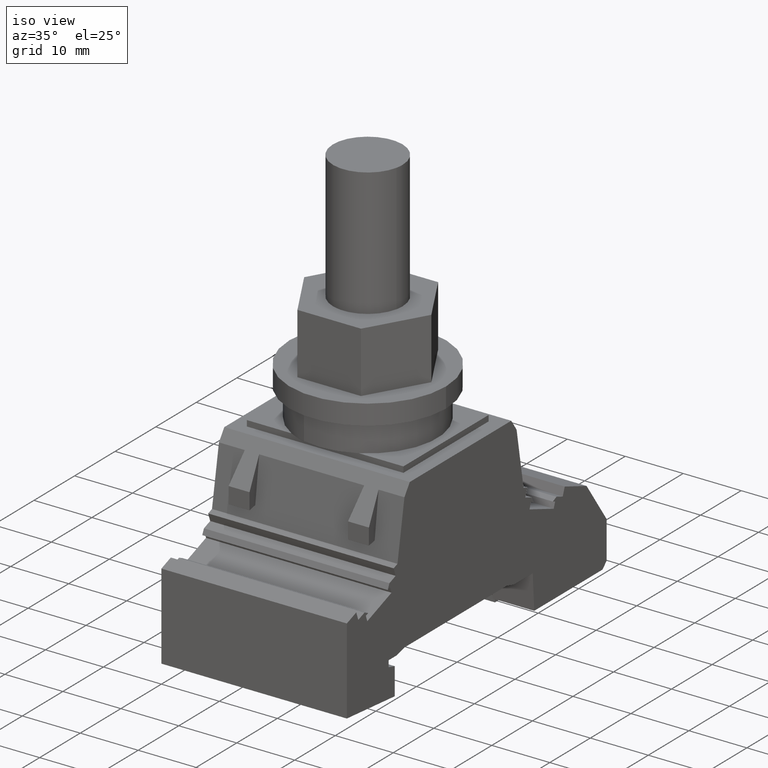
[diagram: clean part render]
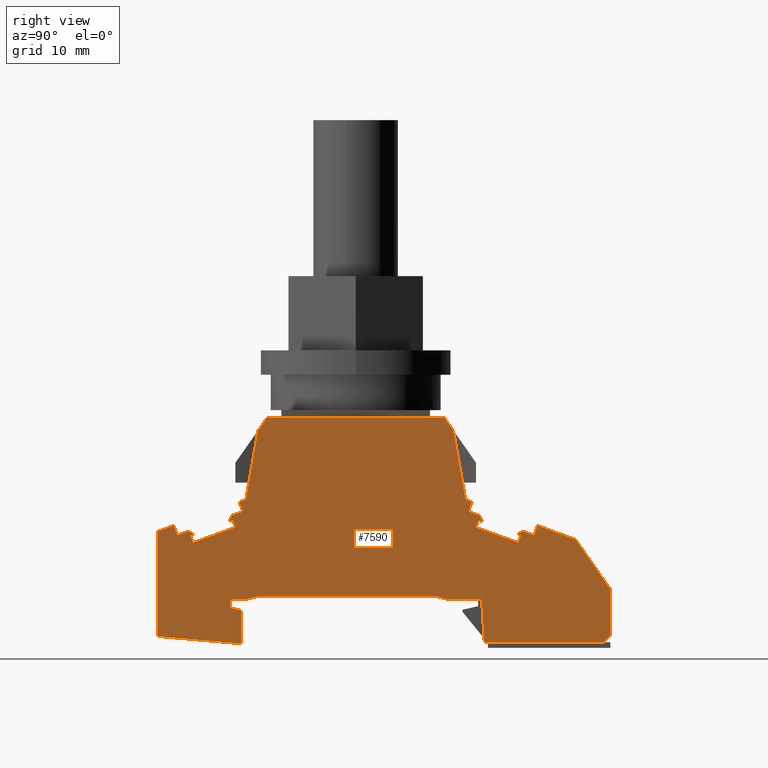
[diagram: tour spotlight — one face highlighted and labeled with its STEP entity id]
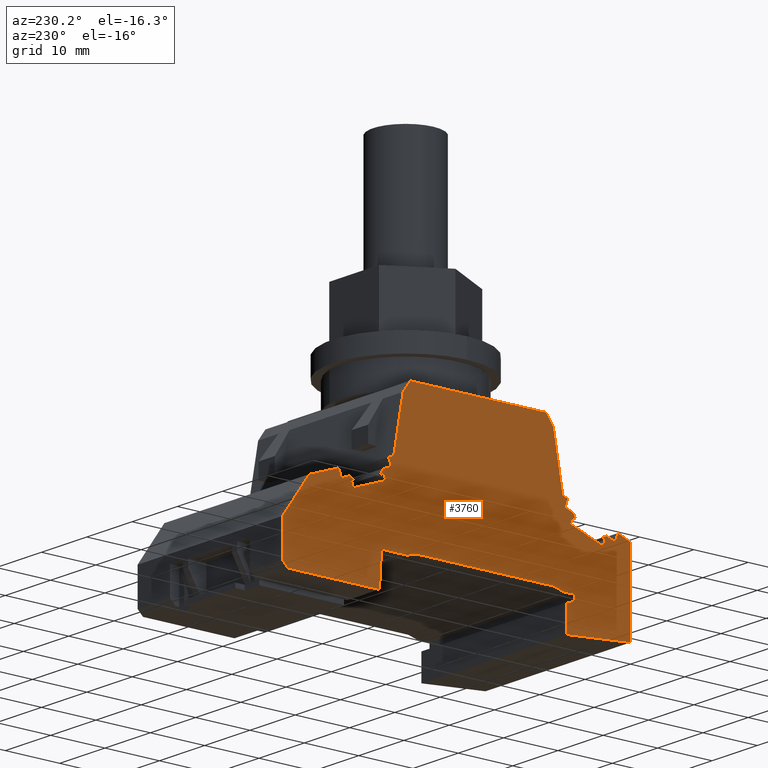
[diagram: tour spotlight — one face highlighted and labeled with its STEP entity id]
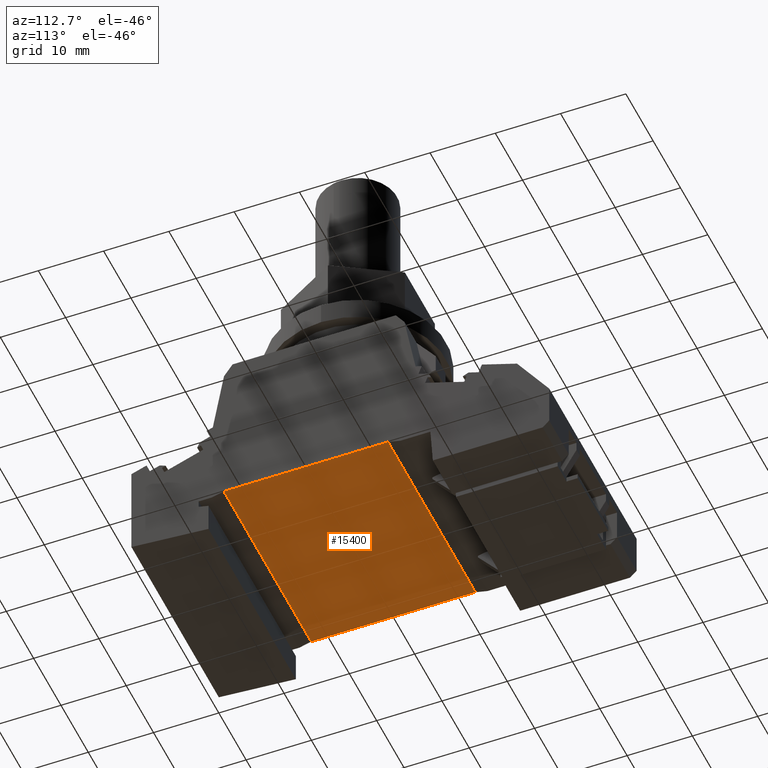
[diagram: tour spotlight — one face highlighted and labeled with its STEP entity id]
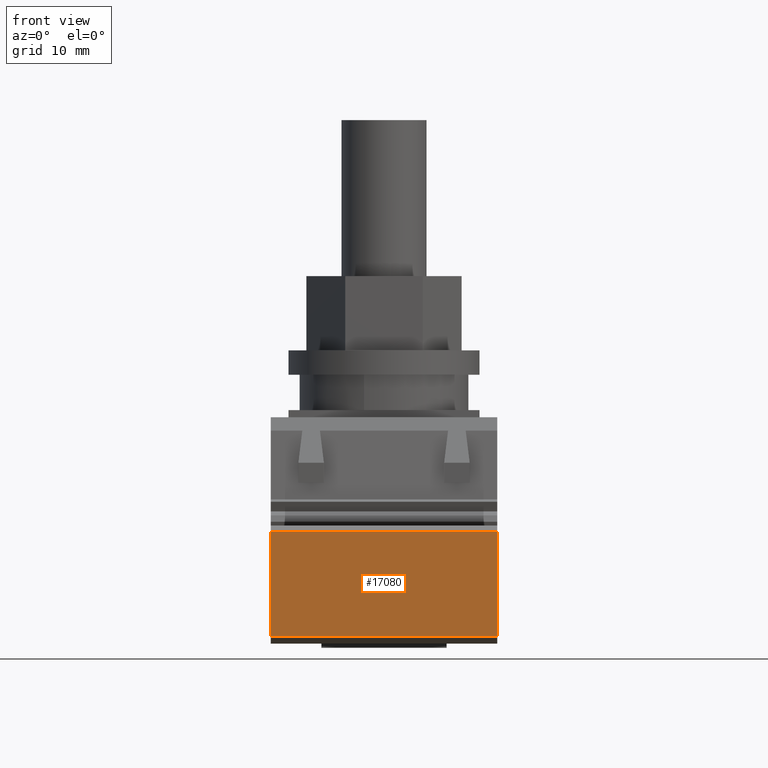
[diagram: tour spotlight — one face highlighted and labeled with its STEP entity id]
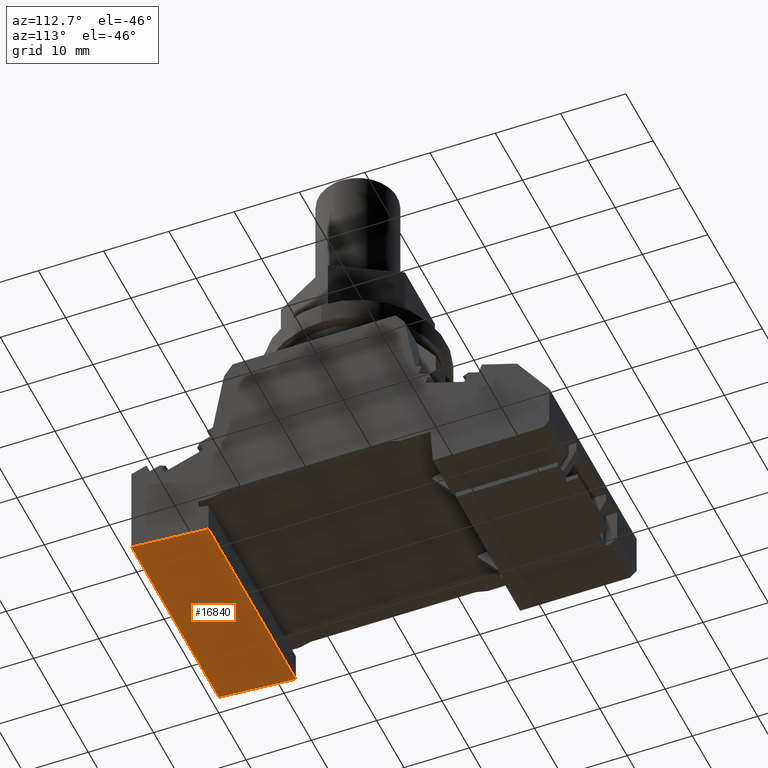
[diagram: tour spotlight — one face highlighted and labeled with its STEP entity id]
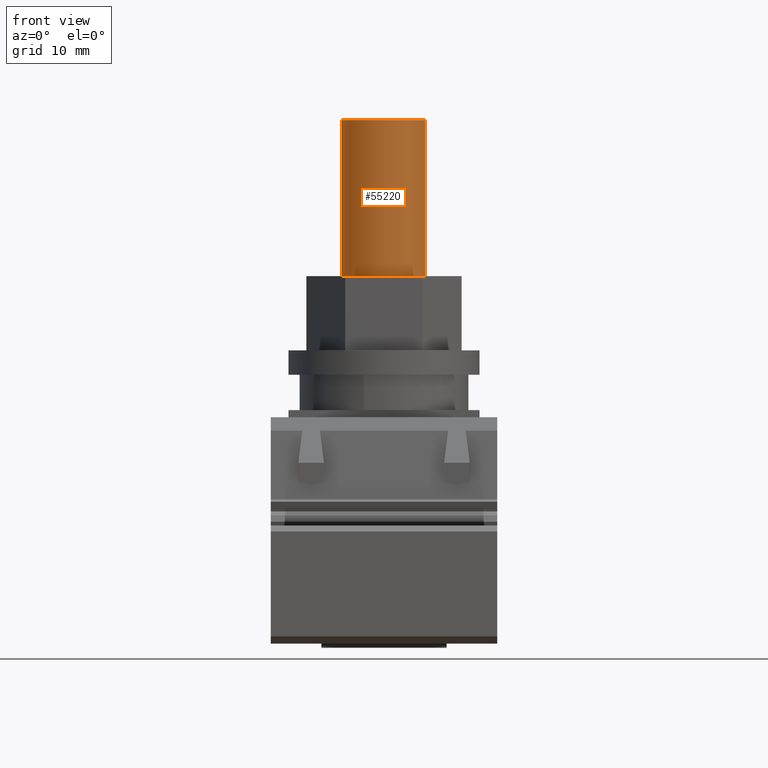
[diagram: tour spotlight — one face highlighted and labeled with its STEP entity id]
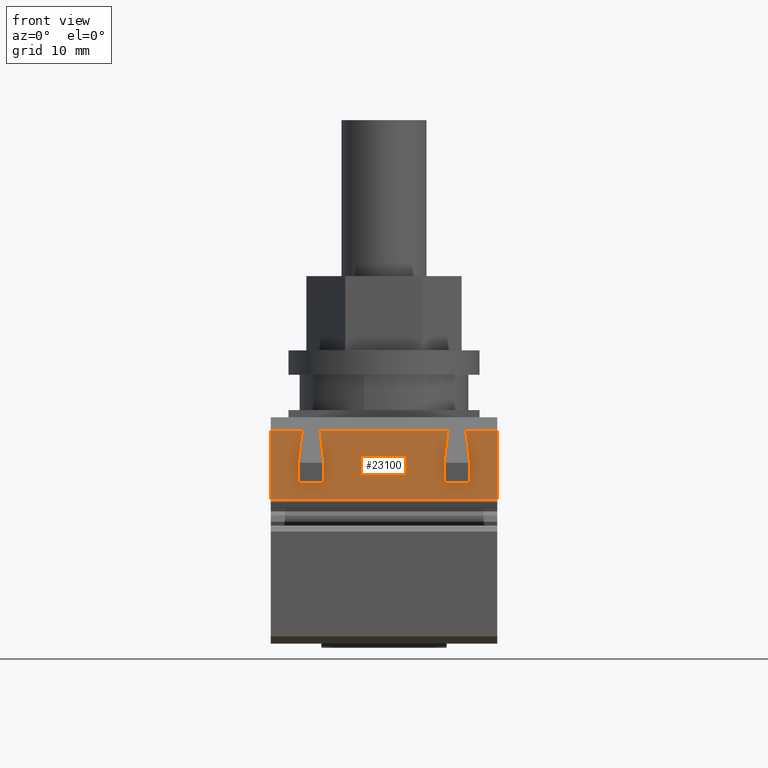
[diagram: tour spotlight — one face highlighted and labeled with its STEP entity id]
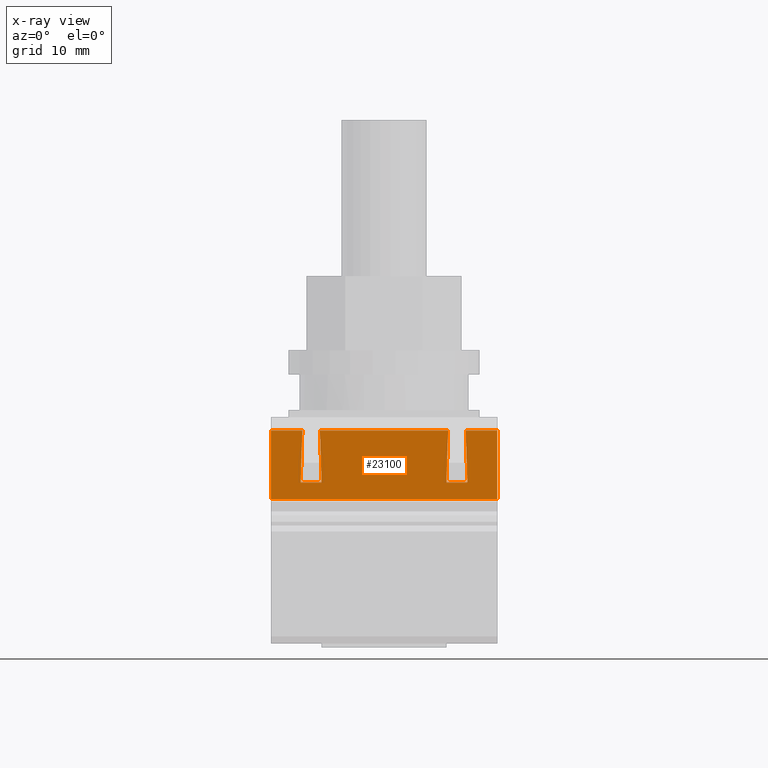
[diagram: x-ray of the same camera — body ghosted, this tour face saturated]
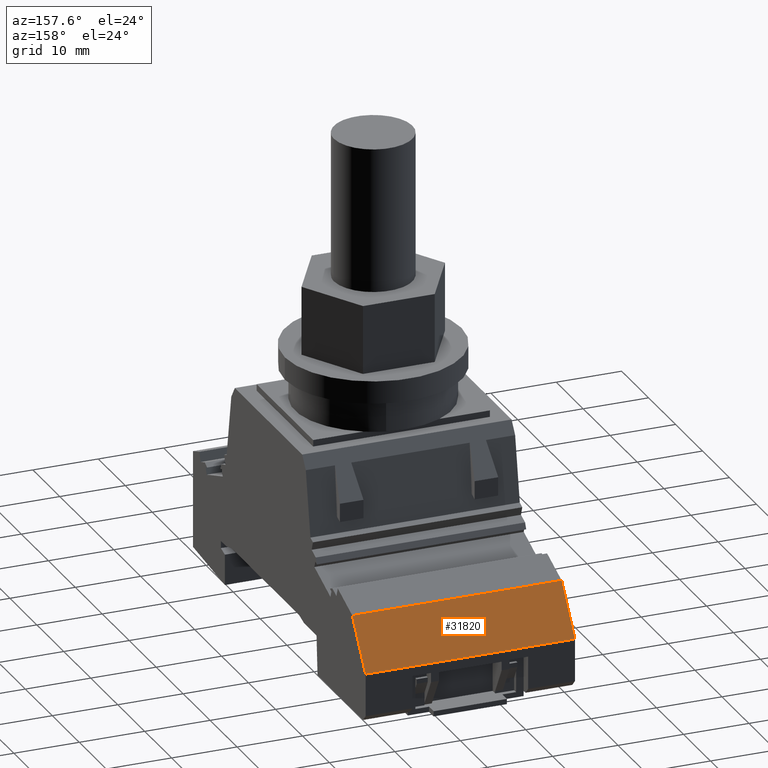
[diagram: tour spotlight — one face highlighted and labeled with its STEP entity id]
A machine part: a face-by-face anatomy tour. The part has 150 B-rep faces; the first image is the clean iso view, then the 8 largest visible faces are spotlighted one at a time (largest first), each with its STEP entity span.

Face 1 — right view, entity #7590. In plain terms, the highlighted planar face has unit normal (1, 0, -0).
Definition (entity closure, byte-faithful):
#3840=CARTESIAN_POINT('',(32.0000000000136,25.9673055963457,
7.55244278192368));
#3850=DIRECTION('',(1.,4.6867404385302E-17,-8.98964383383809E-13));
#3860=DIRECTION('',(-4.68674044493644E-17,1.,-7.12624403908119E-14));
#3870=AXIS2_PLACEMENT_3D('',#3840,#3850,#3860);
#3880=PLANE('',#3870);
#3890=CARTESIAN_POINT('',(32.0000000000423,63.9999997384255,
39.5248570703975));
#3900=DIRECTION('',(8.98964383383809E-13,7.38159471353285E-14,1.));
#3910=VECTOR('',#3900,1.);
#3920=LINE('',#3890,#3910);
#3930=CARTESIAN_POINT('',(32.0000000000084,63.9999997384228,
1.799999811531));
#3940=VERTEX_POINT('',#3930);
#3950=CARTESIAN_POINT('',(32.0000000000143,63.9999997384232,
8.29999934003348));
#3960=VERTEX_POINT('',#3950);
#3970=EDGE_CURVE('',#3940,#3960,#3920,.T.);
#3980=ORIENTED_EDGE('',*,*,#3970,.T.);
#3990=CARTESIAN_POINT('',(31.9999999999284,-25.0169236945611,
-87.2169236214507));
#4000=DIRECTION('',(6.35646558170302E-13,0.707106781186556,
0.707106781186539));
#4010=VECTOR('',#4000,1.);
#4020=LINE('',#3990,#4010);
#4030=CARTESIAN_POINT('',(32.0000000000075,62.9999999266841,
0.799999999792391));
#4040=VERTEX_POINT('',#4030);
#4050=EDGE_CURVE('',#4040,#3940,#4020,.T.);
#4060=ORIENTED_EDGE('',*,*,#4050,.T.);
#4070=CARTESIAN_POINT('',(32.0000000000075,-25.0169236945612,
0.799999999798892));
#4080=DIRECTION('',(-4.68674044517878E-17,1.,-7.38159471353284E-14));
#4090=VECTOR('',#4080,1.);
#4100=LINE('',#4070,#4090);
#4110=CARTESIAN_POINT('',(32.0000000000075,46.1669749611391,
0.799999999793641));
#4120=VERTEX_POINT('',#4110);
#4130=EDGE_CURVE('',#4120,#4040,#4100,.T.);
#4140=ORIENTED_EDGE('',*,*,#4130,.T.);
#4150=CARTESIAN_POINT('',(32.0000000000423,43.7984612377476,
39.5248570703975));
#4160=DIRECTION('',(8.97291325103961E-13,-0.0610485395348666,
0.998134798421866));
#4170=VECTOR('',#4160,1.);
#4180=LINE('',#4150,#4170);
#4190=CARTESIAN_POINT('',(32.0000000000129,45.7999992402257,
6.79999999996551));
#4200=VERTEX_POINT('',#4190);
#4210=EDGE_CURVE('',#4120,#4200,#4180,.T.);
#4220=ORIENTED_EDGE('',*,*,#4210,.F.);
#4230=CARTESIAN_POINT('',(32.0000000000129,-25.0169236945612,
6.79999999997005));
#4240=DIRECTION('',(-4.68674044429021E-17,1.,-6.40312129728737E-14));
#4250=VECTOR('',#4240,1.);
#4260=LINE('',#4230,#4250);
#4270=CARTESIAN_POINT('',(32.0000000000129,41.1763157167663,
6.79999999996581));
#4280=VERTEX_POINT('',#4270);
#4290=EDGE_CURVE('',#4280,#4200,#4260,.T.);
#4300=ORIENTED_EDGE('',*,*,#4290,.T.);
#4310=CARTESIAN_POINT('',(32.0000000000288,-25.0169236945612,
24.5364250446382));
#4320=DIRECTION('',(-2.32723236342659E-13,0.965925826289042,
-0.258819045102618));
#4330=VECTOR('',#4320,1.);
#4340=LINE('',#4310,#4330);
#4350=CARTESIAN_POINT('',(32.0000000000133,39.310290078549,
7.30000006278209));
#4360=VERTEX_POINT('',#4350);
#4370=EDGE_CURVE('',#4360,#4280,#4340,.T.);
#4380=ORIENTED_EDGE('',*,*,#4370,.T.);
#4390=CARTESIAN_POINT('',(32.0000000000134,-25.0169236945612,
7.3000000627863));
#4400=DIRECTION('',(-4.68674044443157E-17,1.,-6.55447918139922E-14));
#4410=VECTOR('',#4400,1.);
#4420=LINE('',#4390,#4410);
#4430=CARTESIAN_POINT('',(32.0000000000133,14.1660246361289,
7.30000006278373));
#4440=VERTEX_POINT('',#4430);
#4450=EDGE_CURVE('',#4440,#4360,#4420,.T.);
#4460=ORIENTED_EDGE('',*,*,#4450,.T.);
#4470=CARTESIAN_POINT('',(32.0000000000039,-25.0169236945612,
-3.19903929949302));
#4480=DIRECTION('',(2.32601835711691E-13,0.965925826289081,
0.258819045102473));
#4490=VECTOR('',#4480,1.);
#4500=LINE('',#4470,#4490);
#4510=CARTESIAN_POINT('',(32.0000000000129,12.299999232343,
6.80000006278343));
#4520=VERTEX_POINT('',#4510);
#4530=EDGE_CURVE('',#4520,#4440,#4500,.T.);
#4540=ORIENTED_EDGE('',*,*,#4530,.T.);
#4550=CARTESIAN_POINT('',(32.0000000000129,-25.0169236945612,
6.80000006278588));
#4560=DIRECTION('',(-4.68674044441138E-17,1.,-6.53782583602985E-14));
#4570=VECTOR('',#4560,1.);
#4580=LINE('',#4550,#4570);
#4590=CARTESIAN_POINT('',(32.0000000000129,10.2999999999998,
6.80000006278357));
#4600=VERTEX_POINT('',#4590);
#4610=EDGE_CURVE('',#4600,#4520,#4580,.T.);
#4620=ORIENTED_EDGE('',*,*,#4610,.T.);
#4630=CARTESIAN_POINT('',(32.0000000000423,10.3000000000022,
39.5248570703975));
#4640=DIRECTION('',(8.98964383383809E-13,7.1762035307807E-14,1.));
#4650=VECTOR('',#4640,1.);
#4660=LINE('',#4630,#4650);
#4670=CARTESIAN_POINT('',(32.0000000000119,10.2999999999997,
5.69999998906295));
#4680=VERTEX_POINT('',#4670);
#4690=EDGE_CURVE('',#4680,#4600,#4660,.T.);
#4700=ORIENTED_EDGE('',*,*,#4690,.T.);
#4710=CARTESIAN_POINT('',(32.0000000000204,-25.0169236945612,
15.1631411721721));
#4720=DIRECTION('',(2.32709358554809E-13,-0.965925826289068,
0.25881904510252));
#4730=VECTOR('',#4720,1.);
#4740=LINE('',#4710,#4730);
#4750=CARTESIAN_POINT('',(32.0000000000116,11.7999999603358,
5.29807621104418));
#4760=VERTEX_POINT('',#4750);
#4770=EDGE_CURVE('',#4760,#4680,#4740,.T.);
#4780=ORIENTED_EDGE('',*,*,#4770,.T.);
#4790=CARTESIAN_POINT('',(32.0000000000423,11.7999999603386,
39.5248570703975));
#4800=DIRECTION('',(8.98964383383809E-13,8.044956396607E-14,1.));
#4810=VECTOR('',#4800,1.);
#4820=LINE('',#4790,#4810);
#4830=CARTESIAN_POINT('',(32.0000000000073,11.7999999603355,
0.605167778911678));
#4840=VERTEX_POINT('',#4830);
#4850=EDGE_CURVE('',#4840,#4760,#4820,.T.);
#4860=ORIENTED_EDGE('',*,*,#4850,.T.);
#4870=CARTESIAN_POINT('',(32.0000000000102,-25.0169236945612,
3.82623122461726));
#4880=DIRECTION('',(-7.83954031424104E-14,0.996194698091739,
-0.0871557427477307));
#4890=VECTOR('',#4880,1.);
#4900=LINE('',#4870,#4890);
#4910=CARTESIAN_POINT('',(32.0000000000083,-6.21724893790088E-13,
1.6375340050483));
#4920=VERTEX_POINT('',#4910);
#4930=EDGE_CURVE('',#4920,#4840,#4900,.T.);
#4940=ORIENTED_EDGE('',*,*,#4930,.T.);
#4950=CARTESIAN_POINT('',(32.0000000000423,2.0961010704923E-12,
39.5248570703975));
#4960=DIRECTION('',(-8.98964383383809E-13,-7.16510083514651E-14,-1.));
#4970=VECTOR('',#4960,1.);
#4980=LINE('',#4950,#4970);
#4990=CARTESIAN_POINT('',(32.0000000000216,4.40536496171262E-13,
16.4588988553985));
#5000=VERTEX_POINT('',#4990);
#5010=EDGE_CURVE('',#5000,#4920,#4980,.T.);
#5020=ORIENTED_EDGE('',*,*,#5010,.T.);
#5030=CARTESIAN_POINT('',(32.0000000000134,-25.0169236945612,
7.35348327763101));
#5040=DIRECTION('',(-3.07414025079861E-13,-0.939692620785447,
-0.342020143326936));
#5050=VECTOR('',#5040,1.);
#5060=LINE('',#5030,#5050);
#5070=CARTESIAN_POINT('',(32.0000000000224,2.31751769197715,
17.3024063126669));
#5080=VERTEX_POINT('',#5070);
#5090=EDGE_CURVE('',#5080,#5000,#5060,.T.);
#5100=ORIENTED_EDGE('',*,*,#5090,.T.);
#5110=CARTESIAN_POINT('',(32.0000000000423,-5.77079291781068,
39.5248570703975));
#5120=DIRECTION('',(8.4478130857885E-13,-0.342020143337397,
0.93969262078164));
#5130=VECTOR('',#5120,1.);
#5140=LINE('',#5110,#5130);
#5150=CARTESIAN_POINT('',(32.0000000000211,2.81344689878964,
15.9398520120207));
#5160=VERTEX_POINT('',#5150);
#5170=EDGE_CURVE('',#5160,#5080,#5140,.T.);
#5180=ORIENTED_EDGE('',*,*,#5170,.T.);
#5190=CARTESIAN_POINT('',(32.000000000012,-25.0169236945612,
5.81042550722442));
#5200=DIRECTION('',(-3.07386269502045E-13,-0.93969262078353,
-0.342020143332204));
#5210=VECTOR('',#5200,1.);
#5220=LINE('',#5190,#5210);
#5230=CARTESIAN_POINT('',(32.0000000000216,4.34876158525869,
16.4986608581393));
#5240=VERTEX_POINT('',#5230);
#5250=EDGE_CURVE('',#5240,#5160,#5220,.T.);
#5260=ORIENTED_EDGE('',*,*,#5250,.T.);
#5270=CARTESIAN_POINT('',(32.0000000000339,-25.0169236945612,
30.1921047908402));
#5280=DIRECTION('',(3.79972209266969E-13,-0.906307787039589,
0.422618261734396));
#5290=VECTOR('',#5280,1.);
#5300=LINE('',#5270,#5290);
#5310=CARTESIAN_POINT('',(32.0000000000212,5.24596052012712,
16.0802901239293));
#5320=VERTEX_POINT('',#5310);
#5330=EDGE_CURVE('',#5320,#5240,#5300,.T.);
#5340=ORIENTED_EDGE('',*,*,#5330,.T.);
#5350=CARTESIAN_POINT('',(32.0000000000113,-25.0169236945612,
5.06550106650025));
#5360=DIRECTION('',(3.07414025077665E-13,0.939692620783534,
0.342020143332193));
#5370=VECTOR('',#5360,1.);
#5380=LINE('',#5350,#5370);
#5390=CARTESIAN_POINT('',(32.0000000000211,4.67383076995355,
15.8720519247234));
#5400=VERTEX_POINT('',#5390);
#5410=EDGE_CURVE('',#5400,#5320,#5380,.T.);
#5420=ORIENTED_EDGE('',*,*,#5410,.T.);
#5430=CARTESIAN_POINT('',(32.0000000000423,-3.9350862601566,
39.5248570703975));
#5440=DIRECTION('',(8.44809064161553E-13,-0.342020143332205,
0.939692620783529));
#5450=VECTOR('',#5440,1.);
#5460=LINE('',#5430,#5450);
#5470=CARTESIAN_POINT('',(32.0000000000202,5.03295192045228,
14.8853746729009));
#5480=VERTEX_POINT('',#5470);
#5490=EDGE_CURVE('',#5480,#5400,#5460,.T.);
#5500=ORIENTED_EDGE('',*,*,#5490,.T.);
#5510=CARTESIAN_POINT('',(32.0000000000103,-25.0169236945612,
3.94811440539954));
#5520=DIRECTION('',(-3.07414025077683E-13,-0.93969262078355,
-0.34202014333215));
#5530=VECTOR('',#5520,1.);
#5540=LINE('',#5510,#5530);
#5550=CARTESIAN_POINT('',(32.0000000000221,11.0000000624279,
17.0572025830601));
#5560=VERTEX_POINT('',#5550);
#5570=EDGE_CURVE('',#5560,#5480,#5540,.T.);
#5580=ORIENTED_EDGE('',*,*,#5570,.T.);
#5590=CARTESIAN_POINT('',(32.0000000000423,2.82244259508266,
39.5248570703975));
#5600=DIRECTION('',(-8.44809064161553E-13,0.342020143332205,
-0.939692620783529));
#5610=VECTOR('',#5600,1.);
#5620=LINE('',#5590,#5610);
#5630=CARTESIAN_POINT('',(32.000000000023,10.6408789119292,
18.0438798348825));
#5640=VERTEX_POINT('',#5630);
#5650=EDGE_CURVE('',#5640,#5560,#5620,.T.);
#5660=ORIENTED_EDGE('',*,*,#5650,.T.);
#5670=CARTESIAN_POINT('',(32.0000000000113,-25.0169236945612,
5.06550106650122));
#5680=DIRECTION('',(3.07414025077678E-13,0.939692620783545,
0.342020143332161));
#5690=VECTOR('',#5680,1.);
#5700=LINE('',#5670,#5690);
#5710=CARTESIAN_POINT('',(32.0000000000228,10.0687491617551,
17.8356416356765));
#5720=VERTEX_POINT('',#5710);
#5730=EDGE_CURVE('',#5720,#5640,#5700,.T.);
#5740=ORIENTED_EDGE('',*,*,#5730,.T.);
#5750=CARTESIAN_POINT('',(32.0000000000423,20.1825964181554,
39.5248570703975));
#5760=DIRECTION('',(-8.1473221500249E-13,-0.422618261734396,
-0.906307787039589));
#5770=VECTOR('',#5760,1.);
#5780=LINE('',#5750,#5770);
#5790=CARTESIAN_POINT('',(32.0000000000236,10.4871198959654,
18.7328405705455));
#5800=VERTEX_POINT('',#5790);
#5810=EDGE_CURVE('',#5800,#5720,#5780,.T.);
#5820=ORIENTED_EDGE('',*,*,#5810,.T.);
#5830=CARTESIAN_POINT('',(32.000000000012,-25.0169236945612,
5.81042550722443));
#5840=DIRECTION('',(-3.07386269502045E-13,-0.93969262078353,
-0.342020143332204));
#5850=VECTOR('',#5840,1.);
#5860=LINE('',#5830,#5850);
#5870=CARTESIAN_POINT('',(32.0000000000241,12.0224345826897,
19.291649416757));
#5880=VERTEX_POINT('',#5870);
#5890=EDGE_CURVE('',#5880,#5800,#5860,.T.);
#5900=ORIENTED_EDGE('',*,*,#5890,.T.);
#5910=CARTESIAN_POINT('',(32.0000000000423,4.65814925300474,
39.5248570703975));
#5920=DIRECTION('',(-8.44809064168641E-13,0.342020143327011,
-0.93969262078542));
#5930=VECTOR('',#5920,1.);
#5940=LINE('',#5910,#5930);
#5950=CARTESIAN_POINT('',(32.0000000000254,11.5265053756398,
20.654203717257));
#5960=VERTEX_POINT('',#5950);
#5970=EDGE_CURVE('',#5960,#5880,#5940,.T.);
#5980=ORIENTED_EDGE('',*,*,#5970,.T.);
#5990=CARTESIAN_POINT('',(32.0000000000134,-25.0169236945612,
7.35348327762647));
#6000=DIRECTION('',(-3.0741402507983E-13,-0.93969262078542,
-0.342020143327011));
#6010=VECTOR('',#6000,1.);
#6020=LINE('',#5990,#6010);
#6030=CARTESIAN_POINT('',(32.0000000000257,12.4685849092806,
20.9970926258152));
#6040=VERTEX_POINT('',#6030);
#6050=EDGE_CURVE('',#6040,#5960,#6020,.T.);
#6060=ORIENTED_EDGE('',*,*,#6050,.T.);
#6070=CARTESIAN_POINT('',(32.0000000000423,15.7355296730733,
39.5248570703975));
#6080=DIRECTION('',(-8.85294915069374E-13,-0.173648177667025,
-0.984807753012191));
#6090=VECTOR('',#6080,1.);
#6100=LINE('',#6070,#6090);
#6110=CARTESIAN_POINT('',(32.0000000000344,14.1827891237856,
30.7188278226436));
#6120=VERTEX_POINT('',#6110);
#6130=EDGE_CURVE('',#6120,#6040,#6100,.T.);
#6140=ORIENTED_EDGE('',*,*,#6130,.T.);
#6150=CARTESIAN_POINT('',(32.0000000000423,20.348837184759,
39.5248570703975));
#6160=DIRECTION('',(-7.36341854417294E-13,-0.573576436351108,
-0.819152044288949));
#6170=VECTOR('',#6160,1.);
#6180=LINE('',#6150,#6170);
#6190=CARTESIAN_POINT('',(32.0000000000361,15.5000000629505,
32.5999999998706));
#6200=VERTEX_POINT('',#6190);
#6210=EDGE_CURVE('',#6200,#6120,#6180,.T.);
#6220=ORIENTED_EDGE('',*,*,#6210,.T.);
#6230=CARTESIAN_POINT('',(32.0000000000361,-25.0169236945612,
32.5999999998706));
#6240=DIRECTION('',(4.68674043847409E-17,-1.,-5.68989301325044E-16));
#6250=VECTOR('',#6240,1.);
#6260=LINE('',#6230,#6250);
#6270=CARTESIAN_POINT('',(32.0000000000361,40.5000000629505,
32.5999999998706));
#6280=VERTEX_POINT('',#6270);
#6290=EDGE_CURVE('',#6280,#6200,#6260,.T.);
#6300=ORIENTED_EDGE('',*,*,#6290,.T.);
#6310=CARTESIAN_POINT('',(32.0000000000423,35.6511629411435,
39.5248570703975));
#6320=DIRECTION('',(7.36390449071822E-13,-0.573576436350987,
0.819152044289033));
#6330=VECTOR('',#6320,1.);
#6340=LINE('',#6310,#6330);
#6350=CARTESIAN_POINT('',(32.0000000000344,41.8172110021169,
30.7188278226408));
#6360=VERTEX_POINT('',#6350);
#6370=EDGE_CURVE('',#6360,#6280,#6340,.T.);
#6380=ORIENTED_EDGE('',*,*,#6370,.T.);
#6390=CARTESIAN_POINT('',(32.0000000000423,40.2644704528287,
39.5248570703975));
#6400=DIRECTION('',(8.85313654038559E-13,-0.173648177667026,
0.984807753012191));
#6410=VECTOR('',#6400,1.);
#6420=LINE('',#6390,#6410);
#6430=CARTESIAN_POINT('',(32.0000000000257,43.5314152166213,
20.9970926258158));
#6440=VERTEX_POINT('',#6430);
#6450=EDGE_CURVE('',#6440,#6360,#6420,.T.);
#6460=ORIENTED_EDGE('',*,*,#6450,.T.);
#6470=CARTESIAN_POINT('',(32.0000000000481,-25.0169236945612,
45.9466475979888));
#6480=DIRECTION('',(3.07484085315593E-13,-0.93969262078542,
0.342020143327011));
#6490=VECTOR('',#6480,1.);
#6500=LINE('',#6470,#6490);
#6510=CARTESIAN_POINT('',(32.0000000000254,44.4734947504819,
20.6542037171777));
#6520=VERTEX_POINT('',#6510);
#6530=EDGE_CURVE('',#6520,#6440,#6500,.T.);
#6540=ORIENTED_EDGE('',*,*,#6530,.T.);
#6550=CARTESIAN_POINT('',(32.0000000000423,51.3418508731766,
39.5248570703975));
#6560=DIRECTION('',(8.44763693265004E-13,0.342020143327011,
0.93969262078542));
#6570=VECTOR('',#6560,1.);
#6580=LINE('',#6550,#6570);
#6590=CARTESIAN_POINT('',(32.0000000000241,43.9775655434591,
19.2916494166677));
#6600=VERTEX_POINT('',#6590);
#6610=EDGE_CURVE('',#6600,#6520,#6580,.T.);
#6620=ORIENTED_EDGE('',*,*,#6610,.T.);
#6630=CARTESIAN_POINT('',(32.0000000000467,-25.0169236945612,
44.4035898282504));
#6640=DIRECTION('',(3.07511840894102E-13,-0.93969262078353,
0.342020143332204));
#6650=VECTOR('',#6640,1.);
#6660=LINE('',#6630,#6650);
#6670=CARTESIAN_POINT('',(32.0000000000236,45.5128802299367,
18.7328405705461));
#6680=VERTEX_POINT('',#6670);
#6690=EDGE_CURVE('',#6680,#6600,#6660,.T.);
#6700=ORIENTED_EDGE('',*,*,#6690,.T.);
#6710=CARTESIAN_POINT('',(32.0000000000423,35.8174037077469,
39.5248570703975));
#6720=DIRECTION('',(8.14785829825587E-13,-0.422618261734396,
0.906307787039589));
#6730=VECTOR('',#6720,1.);
#6740=LINE('',#6710,#6730);
#6750=CARTESIAN_POINT('',(32.0000000000228,45.931250964147,
17.8356416356771));
#6760=VERTEX_POINT('',#6750);
#6770=EDGE_CURVE('',#6760,#6680,#6740,.T.);
#6780=ORIENTED_EDGE('',*,*,#6770,.T.);
#6790=CARTESIAN_POINT('',(32.000000000046,-25.0169236945612,
43.6586653875217));
#6800=DIRECTION('',(-3.07511840894078E-13,0.939692620783545,
-0.342020143332161));
#6810=VECTOR('',#6800,1.);
#6820=LINE('',#6790,#6810);
#6830=CARTESIAN_POINT('',(32.000000000023,45.3591212139728,
18.0438798348831));
#6840=VERTEX_POINT('',#6830);
#6850=EDGE_CURVE('',#6840,#6760,#6820,.T.);
#6860=ORIENTED_EDGE('',*,*,#6850,.T.);
#6870=CARTESIAN_POINT('',(32.0000000000423,53.1775575308192,
39.5248570703975));
#6880=DIRECTION('',(8.44735937696214E-13,0.342020143332205,
0.939692620783529));
#6890=VECTOR('',#6880,1.);
#6900=LINE('',#6870,#6890);
#6910=CARTESIAN_POINT('',(32.0000000000221,45.0000000634741,
17.0572025830607));
#6920=VERTEX_POINT('',#6910);
#6930=EDGE_CURVE('',#6920,#6840,#6900,.T.);
#6940=ORIENTED_EDGE('',*,*,#6930,.T.);
#6950=CARTESIAN_POINT('',(32.000000000045,-25.0169236945612,
42.5412787264186));
#6960=DIRECTION('',(3.07511840894072E-13,-0.93969262078355,
0.34202014333215));
#6970=VECTOR('',#6960,1.);
#6980=LINE('',#6950,#6970);
#6990=CARTESIAN_POINT('',(32.0000000000202,50.9670482054498,
14.8853746729016));
#7000=VERTEX_POINT('',#6990);
#7010=EDGE_CURVE('',#7000,#6920,#6980,.T.);
#7020=ORIENTED_EDGE('',*,*,#7010,.T.);
#7030=CARTESIAN_POINT('',(32.0000000000423,59.9350863860584,
39.5248570703975));
#7040=DIRECTION('',(-8.44735937696214E-13,-0.342020143332205,
-0.939692620783529));
#7050=VECTOR('',#7040,1.);
#7060=LINE('',#7030,#7050);
#7070=CARTESIAN_POINT('',(32.000000000021,51.3261693559485,
15.872051924724));
#7080=VERTEX_POINT('',#7070);
#7090=EDGE_CURVE('',#7080,#7000,#7060,.T.);
#7100=ORIENTED_EDGE('',*,*,#7090,.T.);
#7110=CARTESIAN_POINT('',(32.000000000046,-25.0169236945612,
43.6586653875248));
#7120=DIRECTION('',(-3.0748408531848E-13,0.939692620783534,
-0.342020143332193));
#7130=VECTOR('',#7120,1.);
#7140=LINE('',#7110,#7130);
#7150=CARTESIAN_POINT('',(32.0000000000212,50.7540396057749,
16.0802901239299));
#7160=VERTEX_POINT('',#7150);
#7170=EDGE_CURVE('',#7160,#7080,#7140,.T.);
#7180=ORIENTED_EDGE('',*,*,#7170,.T.);
#7190=CARTESIAN_POINT('',(31.9999999999895,-25.0169236945612,
-19.2522903281566));
#7200=DIRECTION('',(-3.79861667908692E-13,-0.906307787039589,
-0.422618261734396));
#7210=VECTOR('',#7200,1.);
#7220=LINE('',#7190,#7210);
#7230=CARTESIAN_POINT('',(32.0000000000216,51.6512385406434,
16.4986608581399));
#7240=VERTEX_POINT('',#7230);
#7250=EDGE_CURVE('',#7240,#7160,#7220,.T.);
#7260=ORIENTED_EDGE('',*,*,#7250,.T.);
#7270=CARTESIAN_POINT('',(32.0000000000467,-25.0169236945612,
44.4035898282504));
#7280=DIRECTION('',(3.07511840894102E-13,-0.93969262078353,
0.342020143332204));
#7290=VECTOR('',#7280,1.);
#7300=LINE('',#7270,#7290);
#7310=CARTESIAN_POINT('',(32.0000000000211,53.1865532268574,
15.9398520121142));
#7320=VERTEX_POINT('',#7310);
#7330=EDGE_CURVE('',#7320,#7240,#7300,.T.);
#7340=ORIENTED_EDGE('',*,*,#7330,.T.);
#7350=CARTESIAN_POINT('',(32.0000000000423,61.7707930434237,
39.5248570703975));
#7360=DIRECTION('',(-8.44763693278653E-13,-0.342020143337397,
-0.93969262078164));
#7370=VECTOR('',#7360,1.);
#7380=LINE('',#7350,#7370);
#7390=CARTESIAN_POINT('',(32.0000000000223,53.6824824339503,
17.3024063126585));
#7400=VERTEX_POINT('',#7390);
#7410=EDGE_CURVE('',#7400,#7320,#7380,.T.);
#7420=ORIENTED_EDGE('',*,*,#7410,.T.);
#7430=CARTESIAN_POINT('',(32.0000000000481,-25.0169236945612,
45.9466475979841));
#7440=DIRECTION('',(3.07484085315551E-13,-0.939692620785447,
0.342020143326936));
#7450=VECTOR('',#7440,1.);
#7460=LINE('',#7430,#7450);
#7470=CARTESIAN_POINT('',(32.0000000000206,59.0693030841854,
15.3417639386342));
#7480=VERTEX_POINT('',#7470);
#7490=EDGE_CURVE('',#7480,#7400,#7460,.T.);
#7500=ORIENTED_EDGE('',*,*,#7490,.T.);
#7510=CARTESIAN_POINT('',(32.0000000000423,42.1361189760995,
39.5248570703975));
#7520=DIRECTION('',(7.36390449071811E-13,-0.573576436350995,
0.819152044289028));
#7530=VECTOR('',#7520,1.);
#7540=LINE('',#7510,#7530);
#7550=EDGE_CURVE('',#3960,#7480,#7540,.T.);
#7560=ORIENTED_EDGE('',*,*,#7550,.T.);
#7570=EDGE_LOOP('',(#7560,#7500,#7420,#7340,#7260,#7180,#7100,#7020,
#6940,#6860,#6780,#6700,#6620,#6540,#6460,#6380,#6300,#6220,#6140,#6060,
#5980,#5900,#5820,#5740,#5660,#5580,#5500,#5420,#5340,#5260,#5180,#5100,
#5020,#4940,#4860,#4780,#4700,#4620,#4540,#4460,#4380,#4300,#4220,#4140,
#4060,#3980));
#7580=FACE_OUTER_BOUND('',#7570,.T.);
#7590=ADVANCED_FACE('',(#7580),#3880,.T.);

Face 2 — auxiliary view, entity #3760. In plain terms, the highlighted planar face has unit normal (-1, -0, 0).
Definition (entity closure, byte-faithful):
#10=CARTESIAN_POINT('',(2.8421709430404E-14,27.8197473248902,
8.20000006280108));
#20=DIRECTION('',(-1.,-4.68674043852502E-17,8.99463983744699E-13));
#30=DIRECTION('',(4.68674043211272E-17,-1.,-7.12901959710589E-14));
#40=AXIS2_PLACEMENT_3D('',#10,#20,#30);
#50=PLANE('',#40);
#60=CARTESIAN_POINT('',(2.81943357549608E-11,42.1361189761181,
39.5248570703998));
#70=DIRECTION('',(7.36824643087611E-13,-0.573576436350995,
0.819152044289027));
#80=VECTOR('',#70,1.);
#90=LINE('',#60,#80);
#100=CARTESIAN_POINT('',(1.27897692436818E-13,63.9999997384232,
8.29999934006223));
#110=VERTEX_POINT('',#100);
#120=CARTESIAN_POINT('',(6.45172804070171E-12,59.0693030841854,
15.341763938663));
#130=VERTEX_POINT('',#120);
#140=EDGE_CURVE('',#110,#130,#90,.T.);
#150=ORIENTED_EDGE('',*,*,#140,.F.);
#160=CARTESIAN_POINT('',(3.39923644787632E-11,-25.0169236945183,
45.9466475979972));
#170=DIRECTION('',(-3.07678841591835E-13,0.939692620785447,
-0.342020143326936));
#180=VECTOR('',#170,1.);
#190=LINE('',#160,#180);
#200=CARTESIAN_POINT('',(8.19966317067156E-12,53.6824824347495,
17.3024063123964));
#210=VERTEX_POINT('',#200);
#220=EDGE_CURVE('',#210,#130,#190,.T.);
#230=ORIENTED_EDGE('',*,*,#220,.T.);
#240=CARTESIAN_POINT('',(-3.97761823478504E-11,34.2624268397135,
-36.0537579182146));
#250=DIRECTION('',(-8.45203638587385E-13,-0.342020143337397,
-0.93969262078164));
#260=VECTOR('',#250,1.);
#270=LINE('',#240,#260);
#280=CARTESIAN_POINT('',(6.99174051987939E-12,53.1865532271124,
15.9398520120501));
#290=VERTEX_POINT('',#280);
#300=EDGE_CURVE('',#210,#290,#270,.T.);
#310=ORIENTED_EDGE('',*,*,#300,.F.);
#320=CARTESIAN_POINT('',(1.77777792487177E-11,20.2309162260203,
27.9347229319891));
#330=DIRECTION('',(3.07678841596574E-13,-0.93969262078353,
0.342020143332204));
#340=VECTOR('',#330,1.);
#350=LINE('',#320,#340);
#360=CARTESIAN_POINT('',(7.48912043491146E-12,51.6512385406434,
16.4986608581687));
#370=VERTEX_POINT('',#360);
#380=EDGE_CURVE('',#290,#370,#350,.T.);
#390=ORIENTED_EDGE('',*,*,#380,.F.);
#400=CARTESIAN_POINT('',(-5.698552740796E-12,20.2309162257649,
1.84712394130855));
#410=DIRECTION('',(3.80087429009327E-13,0.906307787039589,
0.422618261734396));
#420=VECTOR('',#410,1.);
#430=LINE('',#400,#420);
#440=CARTESIAN_POINT('',(7.105427357601E-12,50.7540396057749,
16.0802901239586));
#450=VERTEX_POINT('',#440);
#460=EDGE_CURVE('',#450,#370,#430,.T.);
#470=ORIENTED_EDGE('',*,*,#460,.T.);
#480=CARTESIAN_POINT('',(3.19175796903437E-11,-25.0169236945183,
43.658665387538));
#490=DIRECTION('',(-3.07678841596563E-13,0.939692620783534,
-0.342020143332193));
#500=VECTOR('',#490,1.);
#510=LINE('',#480,#500);
#520=CARTESIAN_POINT('',(6.92068624630338E-12,51.3261693559485,
15.8720519247528));
#530=VERTEX_POINT('',#520);
#540=EDGE_CURVE('',#450,#530,#510,.T.);
#550=ORIENTED_EDGE('',*,*,#540,.F.);
#560=CARTESIAN_POINT('',(2.8208546609676E-11,59.9350863860488,
39.5248570703998));
#570=DIRECTION('',(-8.45203638589085E-13,-0.342020143332205,
-0.939692620783529));
#580=VECTOR('',#570,1.);
#590=LINE('',#560,#580);
#600=CARTESIAN_POINT('',(6.03961325396085E-12,50.9670482054498,
14.8853746729303));
#610=VERTEX_POINT('',#600);
#620=EDGE_CURVE('',#530,#610,#590,.T.);
#630=ORIENTED_EDGE('',*,*,#620,.F.);
#640=CARTESIAN_POINT('',(3.09228198602796E-11,-25.0169236945183,
42.5412787264317));
#650=DIRECTION('',(3.07678841596524E-13,-0.93969262078355,
0.34202014333215));
#660=VECTOR('',#650,1.);
#670=LINE('',#640,#660);
#680=CARTESIAN_POINT('',(8.00071120465873E-12,45.0000000634741,
17.0572025830895));
#690=VERTEX_POINT('',#680);
#700=EDGE_CURVE('',#610,#690,#670,.T.);
#710=ORIENTED_EDGE('',*,*,#700,.F.);
#720=CARTESIAN_POINT('',(2.8208546609676E-11,53.1775575308095,
39.5248570703998));
#730=DIRECTION('',(-8.45203638589085E-13,-0.342020143332205,
-0.939692620783529));
#740=VECTOR('',#730,1.);
#750=LINE('',#720,#740);
#760=CARTESIAN_POINT('',(8.86757334228605E-12,45.3591212139729,
18.0438798349119));
#770=VERTEX_POINT('',#760);
#780=EDGE_CURVE('',#770,#690,#750,.T.);
#790=ORIENTED_EDGE('',*,*,#780,.T.);
#800=CARTESIAN_POINT('',(3.19175796903437E-11,-25.0169236945183,
43.6586653875349));
#810=DIRECTION('',(3.07678841596535E-13,-0.939692620783545,
0.342020143332161));
#820=VECTOR('',#810,1.);
#830=LINE('',#800,#820);
#840=CARTESIAN_POINT('',(8.68283223098842E-12,45.931250964147,
17.8356416357059));
#850=VERTEX_POINT('',#840);
#860=EDGE_CURVE('',#850,#770,#830,.T.);
#870=ORIENTED_EDGE('',*,*,#860,.T.);
#880=CARTESIAN_POINT('',(-3.97761823478504E-11,71.0602906692264,
-36.0537579185749));
#890=DIRECTION('',(-8.15211019650444E-13,0.422618261734396,
-0.906307787039589));
#900=VECTOR('',#890,1.);
#910=LINE('',#880,#900);
#920=CARTESIAN_POINT('',(9.49285094975494E-12,45.5128802299367,
18.7328405705749));
#930=VERTEX_POINT('',#920);
#940=EDGE_CURVE('',#930,#850,#910,.T.);
#950=ORIENTED_EDGE('',*,*,#940,.T.);
#960=CARTESIAN_POINT('',(1.77777792487177E-11,20.2309162260203,
27.9347229319891));
#970=DIRECTION('',(-3.07678841596574E-13,0.93969262078353,
-0.342020143332204));
#980=VECTOR('',#970,1.);
#990=LINE('',#960,#980);
#1000=CARTESIAN_POINT('',(9.99023086478701E-12,43.9775655434591,
19.2916494166965));
#1010=VERTEX_POINT('',#1000);
#1020=EDGE_CURVE('',#1010,#930,#990,.T.);
#1030=ORIENTED_EDGE('',*,*,#1020,.T.);
#1040=CARTESIAN_POINT('',(-3.97761823478504E-11,23.8334846701604,
-36.0537579181134));
#1050=DIRECTION('',(8.45203638590785E-13,0.342020143327011,
0.93969262078542));
#1060=VECTOR('',#1050,1.);
#1070=LINE('',#1040,#1060);
#1080=CARTESIAN_POINT('',(1.12407860797248E-11,44.4734947513088,
20.6542037169055));
#1090=VERTEX_POINT('',#1080);
#1100=EDGE_CURVE('',#1010,#1090,#1070,.T.);
#1110=ORIENTED_EDGE('',*,*,#1100,.F.);
#1120=CARTESIAN_POINT('',(3.39923644787632E-11,-25.0169236945183,
45.946647598002));
#1130=DIRECTION('',(-3.07678841591903E-13,0.93969262078542,
-0.342020143327011));
#1140=VECTOR('',#1130,1.);
#1150=LINE('',#1120,#1140);
#1160=CARTESIAN_POINT('',(1.1539214028744E-11,43.5314152166213,
20.9970926258446));
#1170=VERTEX_POINT('',#1160);
#1180=EDGE_CURVE('',#1170,#1090,#1150,.T.);
#1190=ORIENTED_EDGE('',*,*,#1180,.T.);
#1200=CARTESIAN_POINT('',(2.8208546609676E-11,40.2644704528329,
39.5248570704027));
#1210=DIRECTION('',(-8.85807243186375E-13,0.173648177667026,
-0.984807753012191));
#1220=VECTOR('',#1210,1.);
#1230=LINE('',#1200,#1220);
#1240=CARTESIAN_POINT('',(2.02931005333085E-11,41.8172110021169,
30.7188278226696));
#1250=VERTEX_POINT('',#1240);
#1260=EDGE_CURVE('',#1250,#1170,#1230,.T.);
#1270=ORIENTED_EDGE('',*,*,#1260,.T.);
#1280=CARTESIAN_POINT('',(2.8350655156828E-11,35.5306761778169,
39.69693000131));
#1290=DIRECTION('',(7.36824643087616E-13,-0.573576436350987,
0.819152044289033));
#1300=VECTOR('',#1290,1.);
#1310=LINE('',#1280,#1300);
#1320=CARTESIAN_POINT('',(2.19699813897023E-11,40.5000000629505,
32.5999999998994));
#1330=VERTEX_POINT('',#1320);
#1340=EDGE_CURVE('',#1250,#1330,#1310,.T.);
#1350=ORIENTED_EDGE('',*,*,#1340,.F.);
#1360=CARTESIAN_POINT('',(2.19699813897023E-11,-25.0169236945183,
32.5999999998994));
#1370=DIRECTION('',(-4.68674043847409E-17,1.,5.68989301325057E-16));
#1380=VECTOR('',#1370,1.);
#1390=LINE('',#1360,#1380);
#1400=CARTESIAN_POINT('',(2.19699813897023E-11,15.5000000629505,
32.5999999998994));
#1410=VERTEX_POINT('',#1400);
#1420=EDGE_CURVE('',#1410,#1330,#1390,.T.);
#1430=ORIENTED_EDGE('',*,*,#1420,.T.);
#1440=CARTESIAN_POINT('',(2.8350655156828E-11,20.4693239480856,
39.69693000131));
#1450=DIRECTION('',(-7.36770879009964E-13,-0.573576436351108,
-0.819152044288949));
#1460=VECTOR('',#1450,1.);
#1470=LINE('',#1440,#1460);
#1480=CARTESIAN_POINT('',(2.03073113880237E-11,14.1827891237856,
30.7188278226724));
#1490=VERTEX_POINT('',#1480);
#1500=EDGE_CURVE('',#1410,#1490,#1470,.T.);
#1510=ORIENTED_EDGE('',*,*,#1500,.F.);
#1520=CARTESIAN_POINT('',(2.81943357549608E-11,15.7355296730691,
39.5248570704027));
#1530=DIRECTION('',(8.85790966307648E-13,0.173648177667025,
0.984807753012191));
#1540=VECTOR('',#1530,1.);
#1550=LINE('',#1520,#1540);
#1560=CARTESIAN_POINT('',(1.1539214028744E-11,12.4685849092806,
20.9970926258439));
#1570=VERTEX_POINT('',#1560);
#1580=EDGE_CURVE('',#1570,#1490,#1550,.T.);
#1590=ORIENTED_EDGE('',*,*,#1580,.T.);
#1600=CARTESIAN_POINT('',(-7.38964445190504E-13,-25.0169236945183,
7.35348327767085));
#1610=DIRECTION('',(3.0759075968379E-13,0.93969262078542,
0.342020143327011));
#1620=VECTOR('',#1610,1.);
#1630=LINE('',#1600,#1620);
#1640=CARTESIAN_POINT('',(1.12407860797248E-11,11.5265053748442,
20.6542037169962));
#1650=VERTEX_POINT('',#1640);
#1660=EDGE_CURVE('',#1650,#1570,#1630,.T.);
#1670=ORIENTED_EDGE('',*,*,#1660,.T.);
#1680=CARTESIAN_POINT('',(-3.97903932025656E-11,32.1665154557416,
-36.053757918114));
#1690=DIRECTION('',(8.45235697783516E-13,-0.342020143327011,
0.93969262078542));
#1700=VECTOR('',#1690,1.);
#1710=LINE('',#1680,#1700);
#1720=CARTESIAN_POINT('',(1.00044417195022E-11,12.0224345824429,
19.2916494166959));
#1730=VERTEX_POINT('',#1720);
#1740=EDGE_CURVE('',#1730,#1650,#1710,.T.);
#1750=ORIENTED_EDGE('',*,*,#1740,.T.);
#1760=CARTESIAN_POINT('',(1.77777792487177E-11,35.7690838998817,
27.9347229319885));
#1770=DIRECTION('',(-3.07590759688461E-13,-0.93969262078353,
-0.342020143332204));
#1780=VECTOR('',#1770,1.);
#1790=LINE('',#1760,#1780);
#1800=CARTESIAN_POINT('',(9.50706180447014E-12,10.4871198959654,
18.7328405705743));
#1810=VERTEX_POINT('',#1800);
#1820=EDGE_CURVE('',#1730,#1810,#1790,.T.);
#1830=ORIENTED_EDGE('',*,*,#1820,.F.);
#1840=CARTESIAN_POINT('',(-3.97761823478504E-11,-15.0602905433244,
-36.0537579185755));
#1850=DIRECTION('',(-8.15171405608498E-13,-0.422618261734396,
-0.906307787039589));
#1860=VECTOR('',#1850,1.);
#1870=LINE('',#1840,#1860);
#1880=CARTESIAN_POINT('',(8.69704308570363E-12,10.0687491617551,
17.8356416357053));
#1890=VERTEX_POINT('',#1880);
#1900=EDGE_CURVE('',#1810,#1890,#1870,.T.);
#1910=ORIENTED_EDGE('',*,*,#1900,.F.);
#1920=CARTESIAN_POINT('',(-2.78532752417959E-12,-25.0169236945183,
5.0655010665456));
#1930=DIRECTION('',(3.07590759688423E-13,0.939692620783545,
0.342020143332161));
#1940=VECTOR('',#1930,1.);
#1950=LINE('',#1920,#1940);
#1960=CARTESIAN_POINT('',(8.88178419700125E-12,10.6408789119292,
18.0438798349113));
#1970=VERTEX_POINT('',#1960);
#1980=EDGE_CURVE('',#1890,#1970,#1950,.T.);
#1990=ORIENTED_EDGE('',*,*,#1980,.F.);
#2000=CARTESIAN_POINT('',(2.81943357549608E-11,2.82244259509232,
39.5248570703997));
#2010=DIRECTION('',(-8.45235697781816E-13,0.342020143332205,
-0.939692620783529));
#2020=VECTOR('',#2010,1.);
#2030=LINE('',#2000,#2020);
#2040=CARTESIAN_POINT('',(8.00071120465873E-12,11.0000000624279,
17.0572025830889));
#2050=VERTEX_POINT('',#2040);
#2060=EDGE_CURVE('',#1970,#2050,#2030,.T.);
#2070=ORIENTED_EDGE('',*,*,#2060,.F.);
#2080=CARTESIAN_POINT('',(-3.80850906367414E-12,-25.0169236945183,
3.94811440544392));
#2090=DIRECTION('',(3.07590759688412E-13,0.93969262078355,
0.34202014333215));
#2100=VECTOR('',#2090,1.);
#2110=LINE('',#2080,#2100);
#2120=CARTESIAN_POINT('',(6.03961325396085E-12,5.03295192045228,
14.8853746729297));
#2130=VERTEX_POINT('',#2120);
#2140=EDGE_CURVE('',#2130,#2050,#2110,.T.);
#2150=ORIENTED_EDGE('',*,*,#2140,.T.);
#2160=CARTESIAN_POINT('',(2.81943357549608E-11,-3.93508626014694,
39.5248570703997));
#2170=DIRECTION('',(-8.45235697781816E-13,0.342020143332205,
-0.939692620783529));
#2180=VECTOR('',#2170,1.);
#2190=LINE('',#2160,#2180);
#2200=CARTESIAN_POINT('',(6.93489710101858E-12,4.67383076995355,
15.8720519247522));
#2210=VERTEX_POINT('',#2200);
#2220=EDGE_CURVE('',#2210,#2130,#2190,.T.);
#2230=ORIENTED_EDGE('',*,*,#2220,.T.);
#2240=CARTESIAN_POINT('',(-2.78532752417959E-12,-25.0169236945183,
5.06550106654463));
#2250=DIRECTION('',(-3.07590759688451E-13,-0.939692620783534,
-0.342020143332193));
#2260=VECTOR('',#2250,1.);
#2270=LINE('',#2240,#2260);
#2280=CARTESIAN_POINT('',(7.1196382123162E-12,5.2459605201271,
16.080290123958));
#2290=VERTEX_POINT('',#2280);
#2300=EDGE_CURVE('',#2290,#2210,#2270,.T.);
#2310=ORIENTED_EDGE('',*,*,#2300,.T.);
#2320=CARTESIAN_POINT('',(-5.6843418860808E-12,35.7690839001371,
1.84712394130793));
#2330=DIRECTION('',(3.80172381596433E-13,-0.906307787039589,
0.422618261734396));
#2340=VECTOR('',#2330,1.);
#2350=LINE('',#2320,#2340);
#2360=CARTESIAN_POINT('',(7.48912043491146E-12,4.34876158525867,
16.4986608581681));
#2370=VERTEX_POINT('',#2360);
#2380=EDGE_CURVE('',#2290,#2370,#2350,.T.);
#2390=ORIENTED_EDGE('',*,*,#2380,.F.);
#2400=CARTESIAN_POINT('',(1.77777792487177E-11,35.7690838998817,
27.9347229319885));
#2410=DIRECTION('',(3.07590759688461E-13,0.93969262078353,
0.342020143332204));
#2420=VECTOR('',#2410,1.);
#2430=LINE('',#2400,#2420);
#2440=CARTESIAN_POINT('',(6.99174051987939E-12,2.81344689878963,
15.9398520120495));
#2450=VERTEX_POINT('',#2440);
#2460=EDGE_CURVE('',#2450,#2370,#2430,.T.);
#2470=ORIENTED_EDGE('',*,*,#2460,.T.);
#2480=CARTESIAN_POINT('',(-3.97903932025656E-11,21.7375732861885,
-36.0537579182152));
#2490=DIRECTION('',(-8.45235697780116E-13,0.342020143337397,
-0.93969262078164));
#2500=VECTOR('',#2490,1.);
#2510=LINE('',#2480,#2500);
#2520=CARTESIAN_POINT('',(8.21387402538676E-12,2.31751769116072,
17.3024063123985));
#2530=VERTEX_POINT('',#2520);
#2540=EDGE_CURVE('',#2530,#2450,#2510,.T.);
#2550=ORIENTED_EDGE('',*,*,#2540,.T.);
#2560=CARTESIAN_POINT('',(-7.38964445190504E-13,-25.0169236945183,
7.3534832776754));
#2570=DIRECTION('',(3.07590759683723E-13,0.939692620785447,
0.342020143326936));
#2580=VECTOR('',#2570,1.);
#2590=LINE('',#2560,#2580);
#2600=CARTESIAN_POINT('',(7.46069872548105E-12,4.40536496171262E-13,
16.4588988554273));
#2610=VERTEX_POINT('',#2600);
#2620=EDGE_CURVE('',#2610,#2530,#2590,.T.);
#2630=ORIENTED_EDGE('',*,*,#2620,.T.);
#2640=CARTESIAN_POINT('',(2.81943357549608E-11,2.08899564313469E-12,
39.5248570703997));
#2650=DIRECTION('',(8.99463983744699E-13,7.1651008351465E-14,1.));
#2660=VECTOR('',#2650,1.);
#2670=LINE('',#2640,#2660);
#2680=CARTESIAN_POINT('',(-5.88329385209363E-12,-6.21724893790088E-13,
1.63753400507709));
#2690=VERTEX_POINT('',#2680);
#2700=EDGE_CURVE('',#2690,#2610,#2670,.T.);
#2710=ORIENTED_EDGE('',*,*,#2700,.T.);
#2720=CARTESIAN_POINT('',(-3.90798504668055E-12,-25.0169236945183,
3.82623122464229));
#2730=DIRECTION('',(7.84401406378637E-14,-0.996194698091739,
0.0871557427477307));
#2740=VECTOR('',#2730,1.);
#2750=LINE('',#2720,#2740);
#2760=CARTESIAN_POINT('',(-6.79278855386656E-12,11.7999999603354,
0.605167778940469));
#2770=VERTEX_POINT('',#2760);
#2780=EDGE_CURVE('',#2770,#2690,#2750,.T.);
#2790=ORIENTED_EDGE('',*,*,#2780,.T.);
#2800=CARTESIAN_POINT('',(2.81943357549608E-11,11.7999999603386,
39.5248570703997));
#2810=DIRECTION('',(8.99463983744699E-13,8.044956396607E-14,1.));
#2820=VECTOR('',#2810,1.);
#2830=LINE('',#2800,#2820);
#2840=CARTESIAN_POINT('',(-2.57216470345156E-12,11.7999999603358,
5.29807621107296));
#2850=VERTEX_POINT('',#2840);
#2860=EDGE_CURVE('',#2770,#2850,#2830,.T.);
#2870=ORIENTED_EDGE('',*,*,#2860,.F.);
#2880=CARTESIAN_POINT('',(6.28119778411929E-12,-25.0169236945183,
15.1631411721894));
#2890=DIRECTION('',(2.32843679813218E-13,-0.965925826289068,
0.25881904510252));
#2900=VECTOR('',#2890,1.);
#2910=LINE('',#2880,#2900);
#2920=CARTESIAN_POINT('',(-2.21689333557151E-12,10.2999999999997,
5.69999998909174));
#2930=VERTEX_POINT('',#2920);
#2940=EDGE_CURVE('',#2850,#2930,#2910,.T.);
#2950=ORIENTED_EDGE('',*,*,#2940,.F.);
#2960=CARTESIAN_POINT('',(2.8208546609676E-11,10.3000000000022,
39.5248570703997));
#2970=DIRECTION('',(8.99463983744699E-13,7.1762035307807E-14,1.));
#2980=VECTOR('',#2970,1.);
#2990=LINE('',#2960,#2980);
#3000=CARTESIAN_POINT('',(-1.22213350550737E-12,10.2999999999998,
6.80000006281235));
#3010=VERTEX_POINT('',#3000);
#3020=EDGE_CURVE('',#2930,#3010,#2990,.T.);
#3030=ORIENTED_EDGE('',*,*,#3020,.F.);
#3040=CARTESIAN_POINT('',(-1.23634436022257E-12,-25.0169236945183,
6.80000006281465));
#3050=DIRECTION('',(-4.68674044441138E-17,1.,-6.53782583602986E-14));
#3060=VECTOR('',#3050,1.);
#3070=LINE('',#3040,#3060);
#3080=CARTESIAN_POINT('',(-1.23634436022257E-12,12.2999992323449,
6.80000006281273));
#3090=VERTEX_POINT('',#3080);
#3100=EDGE_CURVE('',#3010,#3090,#3070,.T.);
#3110=ORIENTED_EDGE('',*,*,#3100,.F.);
#3120=CARTESIAN_POINT('',(-7.8159700933611E-13,14.1660246361294,
7.30000006281264));
#3130=DIRECTION('',(-2.32753138940563E-13,-0.965925826289081,
-0.258819045102473));
#3140=VECTOR('',#3130,1.);
#3150=LINE('',#3120,#3140);
#3160=CARTESIAN_POINT('',(-7.8159700933611E-13,14.1660246361318,
7.30000006281252));
#3170=VERTEX_POINT('',#3160);
#3180=EDGE_CURVE('',#3170,#3090,#3150,.T.);
#3190=ORIENTED_EDGE('',*,*,#3180,.T.);
#3200=CARTESIAN_POINT('',(-7.8159700933611E-13,-25.0169236945183,
7.30000006281508));
#3210=DIRECTION('',(4.68674044441138E-17,-1.,6.55447918139923E-14));
#3220=VECTOR('',#3210,1.);
#3230=LINE('',#3200,#3220);
#3240=CARTESIAN_POINT('',(-7.67386154620908E-13,39.3102900785491,
7.30000006281085));
#3250=VERTEX_POINT('',#3240);
#3260=EDGE_CURVE('',#3250,#3170,#3230,.T.);
#3270=ORIENTED_EDGE('',*,*,#3260,.T.);
#3280=CARTESIAN_POINT('',(1.47224454849493E-11,-25.0169236945183,
24.5364250446555));
#3290=DIRECTION('',(2.32843679813307E-13,-0.965925826289042,
0.258819045102618));
#3300=VECTOR('',#3290,1.);
#3310=LINE('',#3280,#3300);
#3320=CARTESIAN_POINT('',(-1.22213350550737E-12,41.1763157167663,
6.79999999999458));
#3330=VERTEX_POINT('',#3320);
#3340=EDGE_CURVE('',#3330,#3250,#3310,.T.);
#3350=ORIENTED_EDGE('',*,*,#3340,.T.);
#3360=CARTESIAN_POINT('',(-1.23634436022257E-12,-25.0169236945183,
6.79999999999882));
#3370=DIRECTION('',(4.68674044427001E-17,-1.,6.40312129728737E-14));
#3380=VECTOR('',#3370,1.);
#3390=LINE('',#3360,#3380);
#3400=CARTESIAN_POINT('',(-1.22213350550737E-12,45.7999992402257,
6.7999999999943));
#3410=VERTEX_POINT('',#3400);
#3420=EDGE_CURVE('',#3410,#3330,#3390,.T.);
#3430=ORIENTED_EDGE('',*,*,#3420,.T.);
#3440=CARTESIAN_POINT('',(2.8208546609676E-11,43.7984612377493,
39.5248570703998));
#3450=DIRECTION('',(8.97789163289334E-13,-0.0610485395348666,
0.998134798421866));
#3460=VECTOR('',#3450,1.);
#3470=LINE('',#3440,#3460);
#3480=CARTESIAN_POINT('',(-6.62225829728413E-12,46.1669749611391,
0.799999999822411));
#3490=VERTEX_POINT('',#3480);
#3500=EDGE_CURVE('',#3490,#3410,#3470,.T.);
#3510=ORIENTED_EDGE('',*,*,#3500,.T.);
#3520=CARTESIAN_POINT('',(-6.62225829728413E-12,-25.0169236945183,
0.799999999827662));
#3530=DIRECTION('',(4.68674044517878E-17,-1.,7.38159471353284E-14));
#3540=VECTOR('',#3530,1.);
#3550=LINE('',#3520,#3540);
#3560=CARTESIAN_POINT('',(-6.62225829728413E-12,62.9999999266841,
0.799999999821161));
#3570=VERTEX_POINT('',#3560);
#3580=EDGE_CURVE('',#3570,#3490,#3550,.T.);
#3590=ORIENTED_EDGE('',*,*,#3580,.T.);
#3600=CARTESIAN_POINT('',(-8.60609361552633E-11,-25.3169239284754,
-87.5169238553362));
#3610=DIRECTION('',(6.35983942079478E-13,0.707106781186556,
0.707106781186539));
#3620=VECTOR('',#3610,1.);
#3630=LINE('',#3600,#3620);
#3640=CARTESIAN_POINT('',(-5.72697445022641E-12,63.9999997384228,
1.79999981155979));
#3650=VERTEX_POINT('',#3640);
#3660=EDGE_CURVE('',#3570,#3650,#3630,.T.);
#3670=ORIENTED_EDGE('',*,*,#3660,.F.);
#3680=CARTESIAN_POINT('',(2.81943357549608E-11,63.9999997384256,
39.5248570703998));
#3690=DIRECTION('',(-8.99463983744699E-13,-7.38159471353285E-14,-1.));
#3700=VECTOR('',#3690,1.);
#3710=LINE('',#3680,#3700);
#3720=EDGE_CURVE('',#110,#3650,#3710,.T.);
#3730=ORIENTED_EDGE('',*,*,#3720,.T.);
#3740=EDGE_LOOP('',(#3730,#3670,#3590,#3510,#3430,#3350,#3270,#3190,
#3110,#3030,#2950,#2870,#2790,#2710,#2630,#2550,#2470,#2390,#2310,#2230,
#2150,#2070,#1990,#1910,#1830,#1750,#1670,#1590,#1510,#1430,#1350,#1270,
#1190,#1110,#1030,#950,#870,#790,#710,#630,#550,#470,#390,#310,#230,#150
));
#3750=FACE_OUTER_BOUND('',#3740,.T.);
#3760=ADVANCED_FACE('',(#3750),#50,.T.);

Face 3 — auxiliary view, entity #15400. In plain terms, the highlighted planar face has unit normal (0, 0, 1).
Definition (entity closure, byte-faithful):
#3160=CARTESIAN_POINT('',(-7.8159700933611E-13,14.1660246361318,
7.30000006281252));
#3170=VERTEX_POINT('',#3160);
#3200=CARTESIAN_POINT('',(-7.8159700933611E-13,-25.0169236945183,
7.30000006281508));
#3210=DIRECTION('',(4.68674044441138E-17,-1.,6.55447918139923E-14));
#3220=VECTOR('',#3210,1.);
#3230=LINE('',#3200,#3220);
#3240=CARTESIAN_POINT('',(-7.67386154620908E-13,39.3102900785491,
7.30000006281085));
#3250=VERTEX_POINT('',#3240);
#3260=EDGE_CURVE('',#3250,#3170,#3230,.T.);
#4350=CARTESIAN_POINT('',(32.0000000000133,39.310290078549,
7.30000006278209));
#4360=VERTEX_POINT('',#4350);
#4390=CARTESIAN_POINT('',(32.0000000000134,-25.0169236945612,
7.3000000627863));
#4400=DIRECTION('',(-4.68674044443157E-17,1.,-6.55447918139922E-14));
#4410=VECTOR('',#4400,1.);
#4420=LINE('',#4390,#4410);
#4430=CARTESIAN_POINT('',(32.0000000000133,14.1660246361289,
7.30000006278373));
#4440=VERTEX_POINT('',#4430);
#4450=EDGE_CURVE('',#4440,#4360,#4420,.T.);
#15060=CARTESIAN_POINT('',(-89.7753396327837,39.310290078549,
7.30000006289163));
#15070=DIRECTION('',(1.,4.68674043853468E-17,-8.99463983744699E-13));
#15080=VECTOR('',#15070,1.);
#15090=LINE('',#15060,#15080);
#15100=EDGE_CURVE('',#3250,#4360,#15090,.T.);
#15240=CARTESIAN_POINT('',(-7.8159700933611E-13,14.1660246361318,
7.30000006281252));
#15250=DIRECTION('',(8.99463983744699E-13,6.55447918139924E-14,1.));
#15260=DIRECTION('',(4.68674044441138E-17,-1.,6.55447918139923E-14));
#15270=AXIS2_PLACEMENT_3D('',#15240,#15250,#15260);
#15280=PLANE('',#15270);
#15290=ORIENTED_EDGE('',*,*,#3260,.F.);
#15300=CARTESIAN_POINT('',(-89.7753396328174,14.1660246361289,
7.30000006289327));
#15310=DIRECTION('',(1.,4.68674043847409E-17,-8.99463983744699E-13));
#15320=VECTOR('',#15310,1.);
#15330=LINE('',#15300,#15320);
#15340=EDGE_CURVE('',#3170,#4440,#15330,.T.);
#15350=ORIENTED_EDGE('',*,*,#15340,.F.);
#15360=ORIENTED_EDGE('',*,*,#4450,.F.);
#15370=ORIENTED_EDGE('',*,*,#15100,.T.);
#15380=EDGE_LOOP('',(#15370,#15360,#15350,#15290));
#15390=FACE_OUTER_BOUND('',#15380,.T.);
#15400=ADVANCED_FACE('',(#15390),#15280,.F.);

Face 4 — front view, entity #17080. In plain terms, the highlighted planar face has unit normal (-0, 1, -0).
Definition (entity closure, byte-faithful):
#2600=CARTESIAN_POINT('',(7.46069872548105E-12,4.40536496171262E-13,
16.4588988554273));
#2610=VERTEX_POINT('',#2600);
#2640=CARTESIAN_POINT('',(2.81943357549608E-11,2.08899564313469E-12,
39.5248570703997));
#2650=DIRECTION('',(8.99463983744699E-13,7.1651008351465E-14,1.));
#2660=VECTOR('',#2650,1.);
#2670=LINE('',#2640,#2660);
#2680=CARTESIAN_POINT('',(-5.88329385209363E-12,-6.21724893790088E-13,
1.63753400507709));
#2690=VERTEX_POINT('',#2680);
#2700=EDGE_CURVE('',#2690,#2610,#2670,.T.);
#4910=CARTESIAN_POINT('',(32.0000000000083,-6.21724893790088E-13,
1.6375340050483));
#4920=VERTEX_POINT('',#4910);
#4950=CARTESIAN_POINT('',(32.0000000000423,2.0961010704923E-12,
39.5248570703975));
#4960=DIRECTION('',(-8.98964383383809E-13,-7.16510083514651E-14,-1.));
#4970=VECTOR('',#4960,1.);
#4980=LINE('',#4950,#4970);
#4990=CARTESIAN_POINT('',(32.0000000000216,4.40536496171262E-13,
16.4588988553985));
#5000=VERTEX_POINT('',#4990);
#5010=EDGE_CURVE('',#5000,#4920,#4980,.T.);
#16740=CARTESIAN_POINT('',(-89.7753396328368,-6.28830321147689E-13,
1.63753400515784));
#16750=DIRECTION('',(1.,4.68674043853468E-17,-8.99463983744699E-13));
#16760=VECTOR('',#16750,1.);
#16770=LINE('',#16740,#16760);
#16780=EDGE_CURVE('',#2690,#4920,#16770,.T.);
#16920=CARTESIAN_POINT('',(7.46069872548105E-12,4.40536496171262E-13,
16.4588988554273));
#16930=DIRECTION('',(-4.68674044495923E-17,1.,-7.1651008351465E-14));
#16940=DIRECTION('',(8.99463983744699E-13,7.1651008351465E-14,1.));
#16950=AXIS2_PLACEMENT_3D('',#16920,#16930,#16940);
#16960=PLANE('',#16950);
#16970=ORIENTED_EDGE('',*,*,#2700,.F.);
#16980=CARTESIAN_POINT('',(-89.7753396328357,4.33431068813661E-13,
16.4588988555081));
#16990=DIRECTION('',(1.,4.68674043853468E-17,-8.99463983744699E-13));
#17000=VECTOR('',#16990,1.);
#17010=LINE('',#16980,#17000);
#17020=EDGE_CURVE('',#2610,#5000,#17010,.T.);
#17030=ORIENTED_EDGE('',*,*,#17020,.F.);
#17040=ORIENTED_EDGE('',*,*,#5010,.F.);
#17050=ORIENTED_EDGE('',*,*,#16780,.T.);
#17060=EDGE_LOOP('',(#17050,#17040,#17030,#16970));
#17070=FACE_OUTER_BOUND('',#17060,.T.);
#17080=ADVANCED_FACE('',(#17070),#16960,.F.);

Face 5 — auxiliary view, entity #16840. In plain terms, the highlighted planar face has unit normal (0, 0.0872, 0.9962).
Definition (entity closure, byte-faithful):
#2680=CARTESIAN_POINT('',(-5.88329385209363E-12,-6.21724893790088E-13,
1.63753400507709));
#2690=VERTEX_POINT('',#2680);
#2720=CARTESIAN_POINT('',(-3.90798504668055E-12,-25.0169236945183,
3.82623122464229));
#2730=DIRECTION('',(7.84401406378637E-14,-0.996194698091739,
0.0871557427477307));
#2740=VECTOR('',#2730,1.);
#2750=LINE('',#2720,#2740);
#2760=CARTESIAN_POINT('',(-6.79278855386656E-12,11.7999999603354,
0.605167778940469));
#2770=VERTEX_POINT('',#2760);
#2780=EDGE_CURVE('',#2770,#2690,#2750,.T.);
#4830=CARTESIAN_POINT('',(32.0000000000073,11.7999999603355,
0.605167778911678));
#4840=VERTEX_POINT('',#4830);
#4870=CARTESIAN_POINT('',(32.0000000000102,-25.0169236945612,
3.82623122461726));
#4880=DIRECTION('',(-7.83954031424104E-14,0.996194698091739,
-0.0871557427477307));
#4890=VECTOR('',#4880,1.);
#4900=LINE('',#4870,#4890);
#4910=CARTESIAN_POINT('',(32.0000000000083,-6.21724893790088E-13,
1.6375340050483));
#4920=VERTEX_POINT('',#4910);
#4930=EDGE_CURVE('',#4920,#4840,#4900,.T.);
#16500=CARTESIAN_POINT('',(-89.775339632821,11.7999999603355,
0.605167779021215));
#16510=DIRECTION('',(1.,4.68674043853468E-17,-8.99463983744699E-13));
#16520=VECTOR('',#16510,1.);
#16530=LINE('',#16500,#16520);
#16540=EDGE_CURVE('',#2770,#4840,#16530,.T.);
#16680=CARTESIAN_POINT('',(-5.88329385209363E-12,-6.21724893790088E-13,
1.63753400507709));
#16690=DIRECTION('',(8.96037166967504E-13,0.0871557427477307,
0.996194698091739));
#16700=DIRECTION('',(7.84401406378637E-14,-0.996194698091739,
0.0871557427477307));
#16710=AXIS2_PLACEMENT_3D('',#16680,#16690,#16700);
#16720=PLANE('',#16710);
#16730=ORIENTED_EDGE('',*,*,#2780,.F.);
#16740=CARTESIAN_POINT('',(-89.7753396328368,-6.28830321147689E-13,
1.63753400515784));
#16750=DIRECTION('',(1.,4.68674043853468E-17,-8.99463983744699E-13));
#16760=VECTOR('',#16750,1.);
#16770=LINE('',#16740,#16760);
#16780=EDGE_CURVE('',#2690,#4920,#16770,.T.);
#16790=ORIENTED_EDGE('',*,*,#16780,.F.);
#16800=ORIENTED_EDGE('',*,*,#4930,.F.);
#16810=ORIENTED_EDGE('',*,*,#16540,.T.);
#16820=EDGE_LOOP('',(#16810,#16800,#16790,#16730));
#16830=FACE_OUTER_BOUND('',#16820,.T.);
#16840=ADVANCED_FACE('',(#16830),#16720,.F.);

Face 6 — front view, entity #55220. In plain terms, the highlighted cylindrical surface (partial cylindrical patch) has radius 6 mm, axis along (0, 0, 1).
Definition (entity closure, byte-faithful):
#17900=CARTESIAN_POINT('',(16.0000000000632,28.0000000629023,
74.5999999999106));
#17910=DIRECTION('',(8.98214982842091E-13,1.38777854935469E-17,1.));
#17920=DIRECTION('',(0.977595183807415,-0.210493839806649,
-8.78232163795821E-13));
#17930=AXIS2_PLACEMENT_3D('',#17900,#17910,#17920);
#17940=CIRCLE('',#17930,6.);
#17970=CARTESIAN_POINT('',(10.1344288972187,29.2629631017422,
74.5999999999159));
#17980=VERTEX_POINT('',#17970);
#18010=CARTESIAN_POINT('',(10.1344288971989,29.2629631017422,
52.5499995512548));
#18020=DIRECTION('',(8.98214982842091E-13,1.38777854935469E-17,1.));
#18030=VECTOR('',#18020,1.);
#18040=LINE('',#18010,#18030);
#18050=CARTESIAN_POINT('',(10.1344288971989,29.2629631017422,
52.5499995512548));
#18060=VERTEX_POINT('',#18050);
#18070=EDGE_CURVE('',#18060,#17980,#18040,.T.);
#18090=CARTESIAN_POINT('',(16.0000000000434,28.0000000629023,
52.5499995512496));
#18100=DIRECTION('',(8.98214982842091E-13,1.38777854935469E-17,1.));
#18110=DIRECTION('',(0.977595183807415,-0.210493839806649,
-8.78087720061731E-13));
#18120=AXIS2_PLACEMENT_3D('',#18090,#18100,#18110);
#18130=CIRCLE('',#18120,6.);
#18180=CARTESIAN_POINT('',(21.8655711028878,26.7370370240625,
52.5499995512443));
#18190=VERTEX_POINT('',#18180);
#18220=CARTESIAN_POINT('',(21.8655711028878,26.7370370240625,
52.5499995512443));
#18230=DIRECTION('',(8.98214982842091E-13,1.38777854935469E-17,1.));
#18240=VECTOR('',#18230,1.);
#18250=LINE('',#18220,#18240);
#18260=CARTESIAN_POINT('',(21.8655711029077,26.7370370240625,
74.5999999999053));
#18270=VERTEX_POINT('',#18260);
#18280=EDGE_CURVE('',#18190,#18270,#18250,.T.);
#30940=EDGE_CURVE('',#17980,#18270,#17940,.T.);
#53870=EDGE_CURVE('',#18060,#18190,#18130,.T.);
#55110=CARTESIAN_POINT('',(16.0000000000434,28.0000000629023,
52.5499995512496));
#55120=DIRECTION('',(8.98214982842091E-13,1.38777854935469E-17,1.));
#55130=DIRECTION('',(0.977595183807415,-0.210493839806649,
-8.78287674947052E-13));
#55140=AXIS2_PLACEMENT_3D('',#55110,#55120,#55130);
#55150=CYLINDRICAL_SURFACE('',#55140,6.);
#55160=ORIENTED_EDGE('',*,*,#53870,.T.);
#55170=ORIENTED_EDGE('',*,*,#18070,.F.);
#55180=ORIENTED_EDGE('',*,*,#30940,.F.);
#55190=ORIENTED_EDGE('',*,*,#18280,.T.);
#55200=EDGE_LOOP('',(#55190,#55180,#55170,#55160));
#55210=FACE_OUTER_BOUND('',#55200,.T.);
#55220=ADVANCED_FACE('',(#55210),#55150,.T.);

Face 7 — front view, entity #23100. An x-ray twin of the same camera follows (body ghosted, this face saturated) — the face is partly hidden behind the body. In plain terms, the highlighted planar face has unit normal (-0, 0.9848, -0.1736).
Definition (entity closure, byte-faithful):
#1480=CARTESIAN_POINT('',(2.03073113880237E-11,14.1827891237856,
30.7188278226724));
#1490=VERTEX_POINT('',#1480);
#1520=CARTESIAN_POINT('',(2.81943357549608E-11,15.7355296730691,
39.5248570704027));
#1530=DIRECTION('',(8.85790966307648E-13,0.173648177667025,
0.984807753012191));
#1540=VECTOR('',#1530,1.);
#1550=LINE('',#1520,#1540);
#1560=CARTESIAN_POINT('',(1.1539214028744E-11,12.4685849092806,
20.9970926258439));
#1570=VERTEX_POINT('',#1560);
#1580=EDGE_CURVE('',#1570,#1490,#1550,.T.);
#6030=CARTESIAN_POINT('',(32.0000000000257,12.4685849092806,
20.9970926258152));
#6040=VERTEX_POINT('',#6030);
#6070=CARTESIAN_POINT('',(32.0000000000423,15.7355296730733,
39.5248570703975));
#6080=DIRECTION('',(-8.85294915069374E-13,-0.173648177667025,
-0.984807753012191));
#6090=VECTOR('',#6080,1.);
#6100=LINE('',#6070,#6090);
#6110=CARTESIAN_POINT('',(32.0000000000344,14.1827891237856,
30.7188278226436));
#6120=VERTEX_POINT('',#6110);
#6130=EDGE_CURVE('',#6120,#6040,#6100,.T.);
#7860=CARTESIAN_POINT('',(27.5441247980528,14.1827891237855,
30.7188278226476));
#7870=VERTEX_POINT('',#7860);
#7900=CARTESIAN_POINT('',(27.2703347479293,15.7355296730726,
39.5248570703979));
#7910=DIRECTION('',(0.0306045158375204,-0.17356683601457,
-0.984346441577477));
#7920=VECTOR('',#7910,1.);
#7930=LINE('',#7900,#7920);
#7940=CARTESIAN_POINT('',(27.7730207666346,12.8846555655176,
23.3567465742108));
#7950=VERTEX_POINT('',#7940);
#7960=EDGE_CURVE('',#7870,#7950,#7930,.T.);
#17540=CARTESIAN_POINT('',(-89.7753396328187,12.4685849092806,
20.9970926259247));
#17550=DIRECTION('',(1.,4.68674043851448E-17,-8.99463983744699E-13));
#17560=VECTOR('',#17550,1.);
#17570=LINE('',#17540,#17560);
#17580=EDGE_CURVE('',#1570,#6040,#17570,.T.);
#22430=CARTESIAN_POINT('',(1.36566313813091E-11,12.8846555655176,
23.3567465742357));
#22440=DIRECTION('',(-1.56236437037591E-13,0.984807753012191,
-0.173648177667025));
#22450=DIRECTION('',(8.85790966307648E-13,0.173648177667025,
0.984807753012191));
#22460=AXIS2_PLACEMENT_3D('',#22430,#22440,#22450);
#22470=PLANE('',#22460);
#22480=ORIENTED_EDGE('',*,*,#1580,.F.);
#22490=CARTESIAN_POINT('',(-89.7753396328157,14.1827891237856,
30.7188278227532));
#22500=DIRECTION('',(-1.,-4.68674043851448E-17,8.99463983744699E-13));
#22510=VECTOR('',#22500,1.);
#22520=LINE('',#22490,#22510);
#22530=CARTESIAN_POINT('',(4.45587521833274,14.1827891237856,
30.7188278226684));
#22540=VERTEX_POINT('',#22530);
#22550=EDGE_CURVE('',#22540,#1490,#22520,.T.);
#22560=ORIENTED_EDGE('',*,*,#22550,.T.);
#22570=CARTESIAN_POINT('',(4.72966527397193,15.7355296730693,
39.5248570703994));
#22580=DIRECTION('',(0.030604516453552,0.173566836011304,0.9843464415589
));
#22590=VECTOR('',#22580,1.);
#22600=LINE('',#22570,#22590);
#22610=CARTESIAN_POINT('',(4.22697924513926,12.8846555655176,
23.3567465742319));
#22620=VERTEX_POINT('',#22610);
#22630=EDGE_CURVE('',#22620,#22540,#22600,.T.);
#22640=ORIENTED_EDGE('',*,*,#22630,.T.);
#22650=CARTESIAN_POINT('',(-89.775339632818,12.8846555655176,
23.3567465743165));
#22660=DIRECTION('',(1.,4.68674043851448E-17,-8.99463983744699E-13));
#22670=VECTOR('',#22660,1.);
#22680=LINE('',#22650,#22670);
#22690=CARTESIAN_POINT('',(7.17302076647864,12.8846555655176,
23.3567465742293));
#22700=VERTEX_POINT('',#22690);
#22710=EDGE_CURVE('',#22620,#22700,#22680,.T.);
#22720=ORIENTED_EDGE('',*,*,#22710,.F.);
#22730=CARTESIAN_POINT('',(6.67033474777385,15.7355296730696,
39.5248570703993));
#22740=DIRECTION('',(0.0306045158375202,-0.17356683601457,
-0.984346441577477));
#22750=VECTOR('',#22740,1.);
#22760=LINE('',#22730,#22750);
#22770=CARTESIAN_POINT('',(6.94412479789688,14.1827891237855,
30.7188278226662));
#22780=VERTEX_POINT('',#22770);
#22790=EDGE_CURVE('',#22780,#22700,#22760,.T.);
#22800=ORIENTED_EDGE('',*,*,#22790,.T.);
#22810=CARTESIAN_POINT('',(-89.7753396328157,14.1827891237856,
30.7188278227532));
#22820=DIRECTION('',(1.,-4.35309634902294E-16,-9.00152603922254E-13));
#22830=VECTOR('',#22820,1.);
#22840=LINE('',#22810,#22830);
#22850=CARTESIAN_POINT('',(25.0558752178943,14.1827891237856,
30.7188278226499));
#22860=VERTEX_POINT('',#22850);
#22870=EDGE_CURVE('',#22780,#22860,#22840,.T.);
#22880=ORIENTED_EDGE('',*,*,#22870,.F.);
#22890=CARTESIAN_POINT('',(25.329665273534,15.7355296730723,
39.524857070398));
#22900=DIRECTION('',(-0.0306045164535519,-0.173566836011304,
-0.9843464415589));
#22910=VECTOR('',#22900,1.);
#22920=LINE('',#22890,#22910);
#22930=CARTESIAN_POINT('',(24.8269792447008,12.8846555655176,
23.3567465742134));
#22940=VERTEX_POINT('',#22930);
#22950=EDGE_CURVE('',#22860,#22940,#22920,.T.);
#22960=ORIENTED_EDGE('',*,*,#22950,.F.);
#22970=EDGE_CURVE('',#22940,#7950,#22680,.T.);
#22980=ORIENTED_EDGE('',*,*,#22970,.F.);
#22990=ORIENTED_EDGE('',*,*,#7960,.T.);
#23000=CARTESIAN_POINT('',(-89.7753396328157,14.1827891237856,
30.7188278227531));
#23010=DIRECTION('',(-1.,7.0875844573134E-17,8.99632138531006E-13));
#23020=VECTOR('',#23010,1.);
#23030=LINE('',#23000,#23020);
#23040=EDGE_CURVE('',#6120,#7870,#23030,.T.);
#23050=ORIENTED_EDGE('',*,*,#23040,.T.);
#23060=ORIENTED_EDGE('',*,*,#6130,.F.);
#23070=ORIENTED_EDGE('',*,*,#17580,.T.);
#23080=EDGE_LOOP('',(#23070,#23060,#23050,#22990,#22980,#22960,#22880,
#22800,#22720,#22640,#22560,#22480));
#23090=FACE_OUTER_BOUND('',#23080,.T.);
#23100=ADVANCED_FACE('',(#23090),#22470,.F.);

Face 8 — auxiliary view, entity #31820. In plain terms, the highlighted planar face has unit normal (-0, -0.8192, -0.5736).
Definition (entity closure, byte-faithful):
#60=CARTESIAN_POINT('',(2.81943357549608E-11,42.1361189761181,
39.5248570703998));
#70=DIRECTION('',(7.36824643087611E-13,-0.573576436350995,
0.819152044289027));
#80=VECTOR('',#70,1.);
#90=LINE('',#60,#80);
#100=CARTESIAN_POINT('',(1.27897692436818E-13,63.9999997384232,
8.29999934006223));
#110=VERTEX_POINT('',#100);
#120=CARTESIAN_POINT('',(6.45172804070171E-12,59.0693030841854,
15.341763938663));
#130=VERTEX_POINT('',#120);
#140=EDGE_CURVE('',#110,#130,#90,.T.);
#3950=CARTESIAN_POINT('',(32.0000000000143,63.9999997384232,
8.29999934003348));
#3960=VERTEX_POINT('',#3950);
#7470=CARTESIAN_POINT('',(32.0000000000206,59.0693030841854,
15.3417639386342));
#7480=VERTEX_POINT('',#7470);
#7510=CARTESIAN_POINT('',(32.0000000000423,42.1361189760995,
39.5248570703975));
#7520=DIRECTION('',(7.36390449071811E-13,-0.573576436350995,
0.819152044289028));
#7530=VECTOR('',#7520,1.);
#7540=LINE('',#7510,#7530);
#7550=EDGE_CURVE('',#3960,#7480,#7540,.T.);
#9190=CARTESIAN_POINT('',(-89.7753396327506,63.9999997384232,
8.29999934014301));
#9200=DIRECTION('',(1.,4.68674043851448E-17,-8.99463983744699E-13));
#9210=VECTOR('',#9200,1.);
#9220=LINE('',#9190,#9210);
#9230=EDGE_CURVE('',#110,#3960,#9220,.T.);
#31140=CARTESIAN_POINT('',(-89.7753396327567,59.0693030841854,
15.3417639387437));
#31150=DIRECTION('',(1.,4.68674043855487E-17,-8.99463983744699E-13));
#31160=VECTOR('',#31150,1.);
#31170=LINE('',#31140,#31160);
#31180=EDGE_CURVE('',#130,#7480,#31170,.T.);
#31710=CARTESIAN_POINT('',(1.13686837721616E-13,63.9999997384232,
8.29999934006223));
#31720=DIRECTION('',(-5.15872954892241E-13,-0.819152044289027,
-0.573576436350995));
#31730=DIRECTION('',(-7.36824643087611E-13,0.573576436350995,
-0.819152044289027));
#31740=AXIS2_PLACEMENT_3D('',#31710,#31720,#31730);
#31750=PLANE('',#31740);
#31760=ORIENTED_EDGE('',*,*,#140,.T.);
#31770=ORIENTED_EDGE('',*,*,#9230,.F.);
#31780=ORIENTED_EDGE('',*,*,#7550,.F.);
#31790=ORIENTED_EDGE('',*,*,#31180,.T.);
#31800=EDGE_LOOP('',(#31790,#31780,#31770,#31760));
#31810=FACE_OUTER_BOUND('',#31800,.T.);
#31820=ADVANCED_FACE('',(#31810),#31750,.F.);